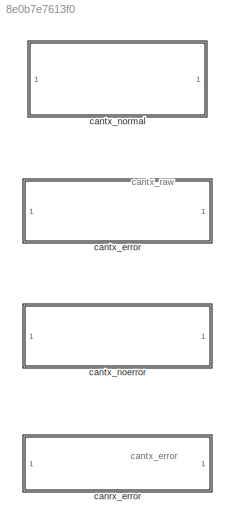
MODEL slx_8e0b7e7613f0
KIND model
CONFIG AbsTol = auto
CONFIG EnableMultiTasking = off
CONFIG FixedStep = auto
CONFIG MaxStep = auto
CONFIG MinStep = auto
CONFIG RelTol = 1e-3
CONFIG SampleTimeConstraint = Unconstrained
CONFIG SolverName = VariableStepAuto
CONFIG StartTime = 0.0
CONFIG StopTime = 10.0
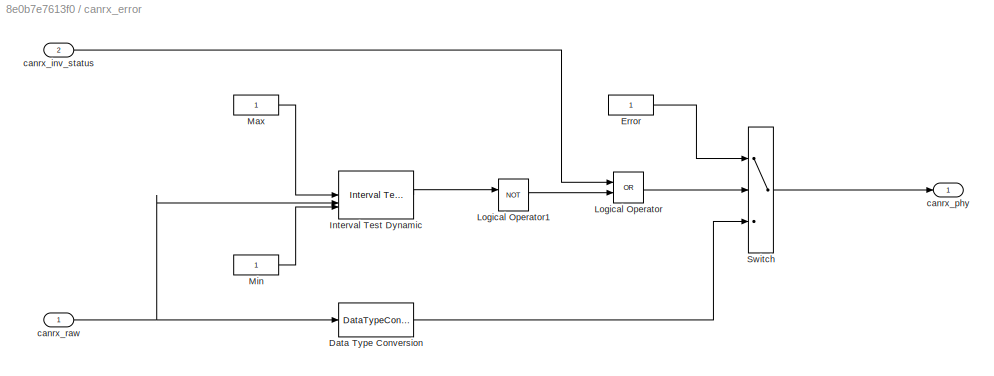
BLOCK [SubSystem] canrx_error
BLOCK [DataTypeConversion] canrx_error/Data Type Conversion
  RndMeth = Floor
  SaturateOnIntegerOverflow = off
BLOCK [Constant] canrx_error/Error
  OutDataTypeStr = Inherit: Inherit via back propagation
BLOCK [Reference] canrx_error/Interval Test Dynamic  REF=simulink/Logic and Bit
Operations/Interval Test
Dynamic
  SourceBlock = simulink/Logic and Bit\nOperations/Interval Test\nDynamic
  SourceType = Interval Test Dynamic
BLOCK [Logic] canrx_error/Logical Operator
  AllPortsSameDT = off
  Operator = OR
  OutDataTypeStr = boolean
BLOCK [Logic] canrx_error/Logical Operator1
  AllPortsSameDT = off
  Operator = NOT
  OutDataTypeStr = boolean
BLOCK [Constant] canrx_error/Max
  OutDataTypeStr = Inherit: Inherit via back propagation
BLOCK [Constant] canrx_error/Min
  OutDataTypeStr = Inherit: Inherit via back propagation
BLOCK [Switch] canrx_error/Switch
  Criteria = u2 > Threshold
  InputSameDT = off
  SaturateOnIntegerOverflow = off
BLOCK [Inport] canrx_error/canrx_inv_status
  Port = 2
BLOCK [Outport] canrx_error/canrx_phy
BLOCK [Inport] canrx_error/canrx_raw
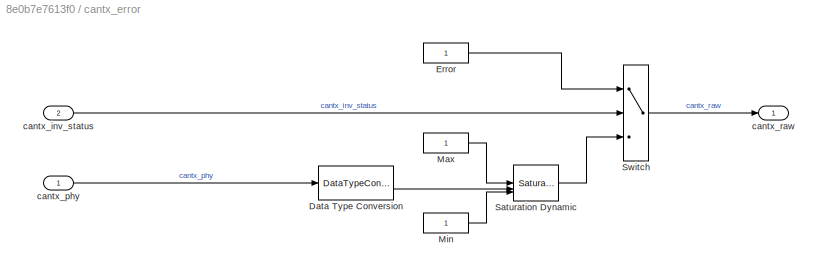
BLOCK [SubSystem] cantx_error
BLOCK [DataTypeConversion] cantx_error/Data Type Conversion
  RndMeth = Floor
  SaturateOnIntegerOverflow = off
BLOCK [Constant] cantx_error/Error
  OutDataTypeStr = Inherit: Inherit via back propagation
BLOCK [Constant] cantx_error/Max
  OutDataTypeStr = Inherit: Inherit via back propagation
BLOCK [Constant] cantx_error/Min
  OutDataTypeStr = Inherit: Inherit via back propagation
BLOCK [Reference] cantx_error/Saturation Dynamic  REF=simulink/Discontinuities/Saturation
Dynamic
  SourceBlock = simulink/Discontinuities/Saturation\nDynamic
  SourceType = Saturation Dynamic
BLOCK [Switch] cantx_error/Switch
  Criteria = u2 > Threshold
  InputSameDT = off
  SaturateOnIntegerOverflow = off
BLOCK [Inport] cantx_error/cantx_inv_status
  Port = 2
BLOCK [Inport] cantx_error/cantx_phy
BLOCK [Outport] cantx_error/cantx_raw
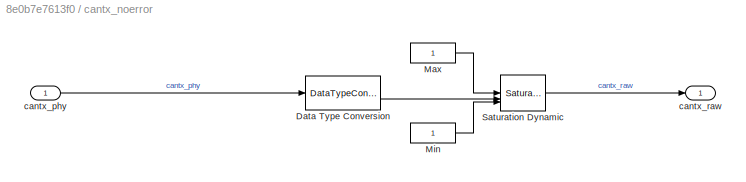
BLOCK [SubSystem] cantx_noerror
BLOCK [DataTypeConversion] cantx_noerror/Data Type Conversion
  RndMeth = Floor
  SaturateOnIntegerOverflow = off
BLOCK [Constant] cantx_noerror/Max
  OutDataTypeStr = Inherit: Inherit via back propagation
BLOCK [Constant] cantx_noerror/Min
  OutDataTypeStr = Inherit: Inherit via back propagation
BLOCK [Reference] cantx_noerror/Saturation Dynamic  REF=simulink/Discontinuities/Saturation
Dynamic
  SourceBlock = simulink/Discontinuities/Saturation\nDynamic
  SourceType = Saturation Dynamic
BLOCK [Inport] cantx_noerror/cantx_phy
BLOCK [Outport] cantx_noerror/cantx_raw
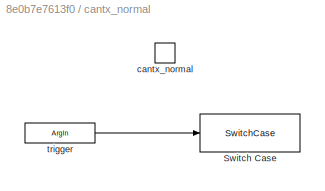
BLOCK [SubSystem] cantx_normal
  TreatAsAtomicUnit = on
BLOCK [SwitchCase] cantx_normal/Switch Case
  CaseConditions = {0}
  ShowDefaultCase = off
BLOCK [TriggerPort] cantx_normal/cantx_normal
  FunctionName = cantx_normal
  FunctionVisibility = scoped
  IsSimulinkFunction = on
  StatesWhenEnabling = held
  TriggerType = function-call
  VariantControl = (inherit)
BLOCK [ArgIn] cantx_normal/trigger
  ArgumentName = trigger
  DisableCoverage = on
ANNOTATION (root): cantx_error
ANNOTATION (root): cantx_raw
LINE canrx_error/Data Type Conversion:1 -> canrx_error/Switch:3
LINE canrx_error/Error:1 -> canrx_error/Switch:1
LINE canrx_error/Interval Test Dynamic:1 -> canrx_error/Logical Operator1:1
LINE canrx_error/Logical Operator1:1 -> canrx_error/Logical Operator:2
LINE canrx_error/Logical Operator:1 -> canrx_error/Switch:2
LINE canrx_error/Max:1 -> canrx_error/Interval Test Dynamic:1
LINE canrx_error/Min:1 -> canrx_error/Interval Test Dynamic:3
LINE canrx_error/Switch:1 -> canrx_error/canrx_phy:1
LINE canrx_error/canrx_inv_status:1 -> canrx_error/Logical Operator:1
NET canrx_error/canrx_raw:1 -> canrx_error/Data Type Conversion:1, canrx_error/Interval Test Dynamic:2
LINE cantx_error/Data Type Conversion:1 -> cantx_error/Saturation Dynamic:2
LINE cantx_error/Error:1 -> cantx_error/Switch:1
LINE cantx_error/Max:1 -> cantx_error/Saturation Dynamic:1
LINE cantx_error/Min:1 -> cantx_error/Saturation Dynamic:3
LINE cantx_error/Saturation Dynamic:1 -> cantx_error/Switch:3
LINE cantx_error/Switch:1 -> cantx_error/cantx_raw:1
LINE cantx_error/cantx_inv_status:1 -> cantx_error/Switch:2
LINE cantx_error/cantx_phy:1 -> cantx_error/Data Type Conversion:1
LINE cantx_noerror/Data Type Conversion:1 -> cantx_noerror/Saturation Dynamic:2
LINE cantx_noerror/Max:1 -> cantx_noerror/Saturation Dynamic:1
LINE cantx_noerror/Min:1 -> cantx_noerror/Saturation Dynamic:3
LINE cantx_noerror/Saturation Dynamic:1 -> cantx_noerror/cantx_raw:1
LINE cantx_noerror/cantx_phy:1 -> cantx_noerror/Data Type Conversion:1
LINE cantx_normal/trigger:1 -> cantx_normal/Switch Case:1
note: NET lines group one-source signal fan-out (src -> all destinations, sorted); 1:1 wires keep LINE
